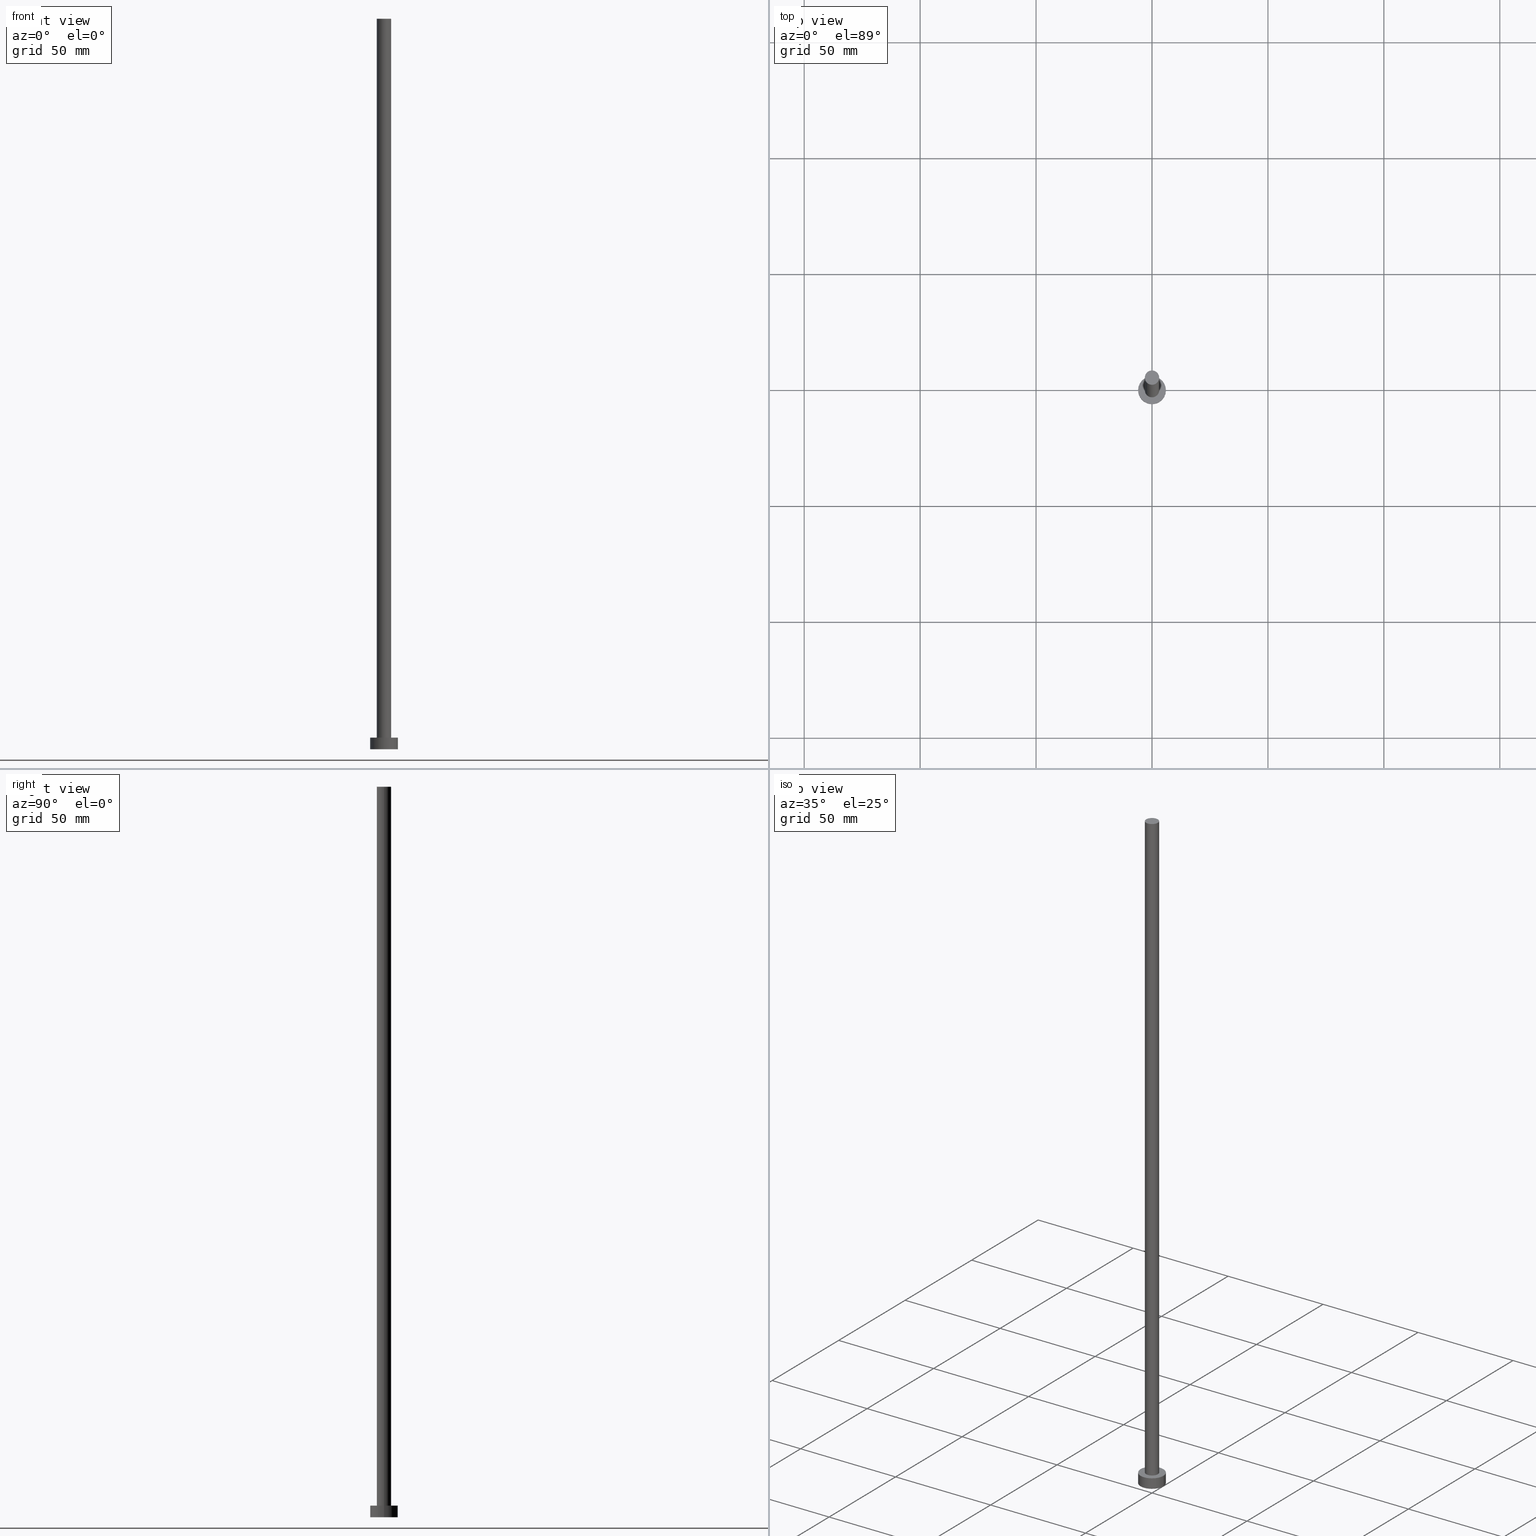
[diagram: canonical four-view strip — front | top / right | iso, engineering-drawing reading convention]
A machine part, canonical four-view strip (front | top / right | iso — engineering-drawing reading convention). The complete STEP part file that produces these views, byte-faithful:
ISO-10303-21;
HEADER;
FILE_DESCRIPTION (( 'STEP AP203' ),
    '1' );
FILE_NAME ('9f86.STEP',
    '2023-02-13T12:35:26',
    ( '' ),
    ( '' ),
    'SwSTEP 2.0',
    'SolidWorks 2019',
    '' );
FILE_SCHEMA (( 'CONFIG_CONTROL_DESIGN' ));
ENDSEC;

DATA;
#1 = CIRCLE ( 'NONE', #21, 3.100000000000000089 ) ;
#2 = CYLINDRICAL_SURFACE ( 'NONE', #121, 6.000000000000000888 ) ;
#3 = FACE_OUTER_BOUND ( 'NONE', #217, .T. ) ;
#4 = DIRECTION ( 'NONE',  ( -1.000000000000000000, 0.000000000000000000, 0.000000000000000000 ) ) ;
#5 = ORIENTED_EDGE ( 'NONE', *, *, #110, .F. ) ;
#6 = LINE ( 'NONE', #62, #50 ) ;
#7 = DIRECTION ( 'NONE',  ( -0.000000000000000000, -0.000000000000000000, -1.000000000000000000 ) ) ;
#8 = CIRCLE ( 'NONE', #58, 6.000000000000000888 ) ;
#9 = DIRECTION ( 'NONE',  ( 0.000000000000000000, 0.000000000000000000, 1.000000000000000000 ) ) ;
#10 = MECHANICAL_CONTEXT ( 'NONE', #152, 'mechanical' ) ;
#11 = AXIS2_PLACEMENT_3D ( 'NONE', #163, #243, #97 ) ;
#12 = ADVANCED_FACE ( 'NONE', ( #67, #25 ), #39, .T. ) ;
#13 = AXIS2_PLACEMENT_3D ( 'NONE', #61, #175, #159 ) ;
#14 = COORDINATED_UNIVERSAL_TIME_OFFSET ( 1, 0, .AHEAD. ) ;
#15 = ORIENTED_EDGE ( 'NONE', *, *, #215, .T. ) ;
#16 = PERSON_AND_ORGANIZATION ( #109, #99 ) ;
#17 = ORIENTED_EDGE ( 'NONE', *, *, #173, .T. ) ;
#18 = EDGE_CURVE ( 'NONE', #134, #55, #255, .T. ) ;
#19 = APPROVAL_DATE_TIME ( #252, #188 ) ;
#20 = FACE_OUTER_BOUND ( 'NONE', #234, .T. ) ;
#21 = AXIS2_PLACEMENT_3D ( 'NONE', #22, #128, #60 ) ;
#22 = CARTESIAN_POINT ( 'NONE',  ( 0.000000000000000000, 0.000000000000000000, 315.0000000000000000 ) ) ;
#23 = ORIENTED_EDGE ( 'NONE', *, *, #116, .F. ) ;
#24 = CARTESIAN_POINT ( 'NONE',  ( 0.000000000000000000, 0.000000000000000000, 5.000000000000000000 ) ) ;
#25 = FACE_OUTER_BOUND ( 'NONE', #36, .T. ) ;
#26 = LINE ( 'NONE', #107, #76 ) ;
#27 = CIRCLE ( 'NONE', #169, 3.100000000000000089 ) ;
#28 = DIRECTION ( 'NONE',  ( 0.000000000000000000, 0.000000000000000000, 1.000000000000000000 ) ) ;
#29 = PERSON_AND_ORGANIZATION ( #109, #99 ) ;
#30 = AXIS2_PLACEMENT_3D ( 'NONE', #42, #254, #126 ) ;
#31 = CALENDAR_DATE ( 2023, 13, 2 ) ;
#32 = ADVANCED_FACE ( 'NONE', ( #20 ), #200, .F. ) ;
#33 = CC_DESIGN_APPROVAL ( #167, ( #72 ) ) ;
#34 = MANIFOLD_SOLID_BREP ( 'P�idat vysunut�m3', #91 ) ;
#35 = APPROVAL_DATE_TIME ( #153, #167 ) ;
#36 = EDGE_LOOP ( 'NONE', ( #17, #69 ) ) ;
#37 = DATE_TIME_ROLE ( 'classification_date' ) ;
#38 = ORIENTED_EDGE ( 'NONE', *, *, #208, .T. ) ;
#39 = PLANE ( 'NONE',  #201 ) ;
#40 = DIRECTION ( 'NONE',  ( -0.000000000000000000, -0.000000000000000000, -1.000000000000000000 ) ) ;
#41 = UNCERTAINTY_MEASURE_WITH_UNIT (LENGTH_MEASURE( 1.000000000000000082E-05 ), #239, 'distance_accuracy_value', 'NONE');
#42 = CARTESIAN_POINT ( 'NONE',  ( 0.000000000000000000, 0.000000000000000000, 5.000000000000000000 ) ) ;
#43 = CIRCLE ( 'NONE', #144, 6.000000000000000888 ) ;
#44 = CARTESIAN_POINT ( 'NONE',  ( 0.000000000000000000, 0.000000000000000000, 315.0000000000000000 ) ) ;
#45 = DIRECTION ( 'NONE',  ( 0.000000000000000000, 0.000000000000000000, 1.000000000000000000 ) ) ;
#46 = CYLINDRICAL_SURFACE ( 'NONE', #11, 3.100000000000000089 ) ;
#47 = CARTESIAN_POINT ( 'NONE',  ( 3.100000000000000089, 3.796405077356794918E-16, 315.0000000000000000 ) ) ;
#48 = CARTESIAN_POINT ( 'NONE',  ( 0.000000000000000000, 0.000000000000000000, 5.000000000000000000 ) ) ;
#49 = LOCAL_TIME ( 13, 35, 26.00000000000000000, #192 ) ;
#50 = VECTOR ( 'NONE', #40, 1000.000000000000000 ) ;
#51 = CC_DESIGN_DATE_AND_TIME_ASSIGNMENT ( #172, #174, ( #72 ) ) ;
#52 = APPROVAL_ROLE ( '' ) ;
#53 = AXIS2_PLACEMENT_3D ( 'NONE', #48, #245, #4 ) ;
#54 = ADVANCED_FACE ( 'NONE', ( #3 ), #129, .T. ) ;
#55 = VERTEX_POINT ( 'NONE', #83 ) ;
#56 = SHAPE_DEFINITION_REPRESENTATION ( #154, #193 ) ;
#57 = PERSON_AND_ORGANIZATION ( #109, #99 ) ;
#58 = AXIS2_PLACEMENT_3D ( 'NONE', #165, #162, #104 ) ;
#59 = ORIENTED_EDGE ( 'NONE', *, *, #18, .T. ) ;
#60 = DIRECTION ( 'NONE',  ( 1.000000000000000000, 0.000000000000000000, 0.000000000000000000 ) ) ;
#61 = CARTESIAN_POINT ( 'NONE',  ( 0.000000000000000000, 0.000000000000000000, 5.000000000000000000 ) ) ;
#62 = CARTESIAN_POINT ( 'NONE',  ( 6.000000000000000888, 7.347880794884120722E-16, 5.000000000000000000 ) ) ;
#63 = CARTESIAN_POINT ( 'NONE',  ( 0.000000000000000000, 0.000000000000000000, 315.0000000000000000 ) ) ;
#64 = LOCAL_TIME ( 13, 35, 26.00000000000000000, #196 ) ;
#65 = CC_DESIGN_APPROVAL ( #146, ( #139 ) ) ;
#66 = EDGE_CURVE ( 'NONE', #138, #127, #225, .T. ) ;
#67 = FACE_BOUND ( 'NONE', #158, .T. ) ;
#68 = CARTESIAN_POINT ( 'NONE',  ( 3.100000000000000089, 3.796405077356794918E-16, 315.0000000000000000 ) ) ;
#69 = ORIENTED_EDGE ( 'NONE', *, *, #74, .T. ) ;
#70 = FACE_OUTER_BOUND ( 'NONE', #177, .T. ) ;
#71 = AXIS2_PLACEMENT_3D ( 'NONE', #63, #143, #184 ) ;
#72 = PRODUCT_DEFINITION ( 'NEZN�M�', '', #168, #101 ) ;
#73 = CALENDAR_DATE ( 2023, 13, 2 ) ;
#74 = EDGE_CURVE ( 'NONE', #244, #179, #230, .T. ) ;
#75 = ORIENTED_EDGE ( 'NONE', *, *, #215, .F. ) ;
#76 = VECTOR ( 'NONE', #176, 1000.000000000000000 ) ;
#77 = LOCAL_TIME ( 13, 35, 26.00000000000000000, #210 ) ;
#78 = APPROVAL_DATE_TIME ( #216, #146 ) ;
#79 = VERTEX_POINT ( 'NONE', #182 ) ;
#80 = PERSON_AND_ORGANIZATION ( #109, #99 ) ;
#81 = ORIENTED_EDGE ( 'NONE', *, *, #232, .T. ) ;
#82 = PERSON_AND_ORGANIZATION_ROLE ( 'classification_officer' ) ;
#83 = CARTESIAN_POINT ( 'NONE',  ( -3.100000000000000089, 0.000000000000000000, 5.000000000000000000 ) ) ;
#84 = CIRCLE ( 'NONE', #30, 3.100000000000000089 ) ;
#85 =( NAMED_UNIT ( * ) PLANE_ANGLE_UNIT ( ) SI_UNIT ( $, .RADIAN. ) );
#86 = CYLINDRICAL_SURFACE ( 'NONE', #53, 6.000000000000000888 ) ;
#87 = ADVANCED_FACE ( 'NONE', ( #70 ), #2, .T. ) ;
#88 = FACE_OUTER_BOUND ( 'NONE', #89, .T. ) ;
#89 = EDGE_LOOP ( 'NONE', ( #183, #135, #59, #15 ) ) ;
#90 = DIRECTION ( 'NONE',  ( 0.000000000000000000, 0.000000000000000000, 1.000000000000000000 ) ) ;
#91 = CLOSED_SHELL ( 'NONE', ( #54, #87, #207, #12, #32, #228, #250 ) ) ;
#92 = CARTESIAN_POINT ( 'NONE',  ( 3.100000000000000089, 3.796405077356794918E-16, 5.000000000000000000 ) ) ;
#93 =( NAMED_UNIT ( * ) SI_UNIT ( $, .STERADIAN. ) SOLID_ANGLE_UNIT ( ) );
#94 = PRODUCT_RELATED_PRODUCT_CATEGORY ( 'detail', '', ( #136 ) ) ;
#95 = PERSON_AND_ORGANIZATION ( #109, #99 ) ;
#96 = EDGE_LOOP ( 'NONE', ( #199, #194, #81, #38 ) ) ;
#97 = DIRECTION ( 'NONE',  ( -1.000000000000000000, 0.000000000000000000, 0.000000000000000000 ) ) ;
#98 = DIRECTION ( 'NONE',  ( 1.000000000000000000, 0.000000000000000000, -0.000000000000000000 ) ) ;
#99 = ORGANIZATION ( 'NEUR�EN�', 'NEUR�EN�', '' ) ;
#100 = DIRECTION ( 'NONE',  ( 1.000000000000000000, 0.000000000000000000, 0.000000000000000000 ) ) ;
#101 = DESIGN_CONTEXT ( 'detailed design', #236, 'design' ) ;
#102 = ORIENTED_EDGE ( 'NONE', *, *, #66, .T. ) ;
#103 = CC_DESIGN_PERSON_AND_ORGANIZATION_ASSIGNMENT ( #213, #82, ( #139 ) ) ;
#104 = DIRECTION ( 'NONE',  ( 1.000000000000000000, 0.000000000000000000, 0.000000000000000000 ) ) ;
#105 = ORIENTED_EDGE ( 'NONE', *, *, #247, .T. ) ;
#106 = APPROVAL_PERSON_ORGANIZATION ( #248, #167, #52 ) ;
#107 = CARTESIAN_POINT ( 'NONE',  ( -6.000000000000000888, 0.000000000000000000, 5.000000000000000000 ) ) ;
#108 = CC_DESIGN_SECURITY_CLASSIFICATION ( #139, ( #168 ) ) ;
#109 = PERSON ( 'NEUR�EN�', 'NEUR�EN�', 'NEUR�EN�', ('NEUR�EN�'), ('NEUR�EN�'), ('NEUR�EN�') ) ;
#110 = EDGE_CURVE ( 'NONE', #127, #55, #27, .T. ) ;
#111 = CARTESIAN_POINT ( 'NONE',  ( 0.000000000000000000, 0.000000000000000000, 0.000000000000000000 ) ) ;
#112 = DIRECTION ( 'NONE',  ( 1.000000000000000000, 0.000000000000000000, 0.000000000000000000 ) ) ;
#113 = PERSON_AND_ORGANIZATION_ROLE ( 'design_owner' ) ;
#114 = CIRCLE ( 'NONE', #186, 6.000000000000000888 ) ;
#115 = APPROVAL_PERSON_ORGANIZATION ( #16, #146, #157 ) ;
#116 = EDGE_CURVE ( 'NONE', #79, #124, #8, .T. ) ;
#117 = APPROVAL_STATUS ( 'not_yet_approved' ) ;
#118 = ORIENTED_EDGE ( 'NONE', *, *, #130, .T. ) ;
#119 = CALENDAR_DATE ( 2023, 13, 2 ) ;
#120 = CALENDAR_DATE ( 2023, 13, 2 ) ;
#121 = AXIS2_PLACEMENT_3D ( 'NONE', #160, #141, #218 ) ;
#122 = DIRECTION ( 'NONE',  ( -1.000000000000000000, 0.000000000000000000, 0.000000000000000000 ) ) ;
#123 = FACE_OUTER_BOUND ( 'NONE', #237, .T. ) ;
#124 = VERTEX_POINT ( 'NONE', #226 ) ;
#125 = CC_DESIGN_APPROVAL ( #188, ( #168 ) ) ;
#126 = DIRECTION ( 'NONE',  ( 1.000000000000000000, 0.000000000000000000, 0.000000000000000000 ) ) ;
#127 = VERTEX_POINT ( 'NONE', #92 ) ;
#128 = DIRECTION ( 'NONE',  ( 0.000000000000000000, 0.000000000000000000, 1.000000000000000000 ) ) ;
#129 = CYLINDRICAL_SURFACE ( 'NONE', #187, 3.100000000000000089 ) ;
#130 = EDGE_CURVE ( 'NONE', #244, #79, #6, .T. ) ;
#131 = DIRECTION ( 'NONE',  ( 0.000000000000000000, 0.000000000000000000, 1.000000000000000000 ) ) ;
#132 = LOCAL_TIME ( 13, 35, 26.00000000000000000, #14 ) ;
#133 = VECTOR ( 'NONE', #161, 1000.000000000000000 ) ;
#134 = VERTEX_POINT ( 'NONE', #142 ) ;
#135 = ORIENTED_EDGE ( 'NONE', *, *, #140, .F. ) ;
#136 = PRODUCT ( '9f86', '9f86', '', ( #10 ) ) ;
#137 = APPROVAL_STATUS ( 'not_yet_approved' ) ;
#138 = VERTEX_POINT ( 'NONE', #68 ) ;
#139 = SECURITY_CLASSIFICATION ( '', '', #214 ) ;
#140 = EDGE_CURVE ( 'NONE', #134, #138, #1, .T. ) ;
#141 = DIRECTION ( 'NONE',  ( -0.000000000000000000, -0.000000000000000000, -1.000000000000000000 ) ) ;
#142 = CARTESIAN_POINT ( 'NONE',  ( -3.100000000000000089, 0.000000000000000000, 315.0000000000000000 ) ) ;
#143 = DIRECTION ( 'NONE',  ( 0.000000000000000000, 0.000000000000000000, 1.000000000000000000 ) ) ;
#144 = AXIS2_PLACEMENT_3D ( 'NONE', #24, #131, #219 ) ;
#145 = CARTESIAN_POINT ( 'NONE',  ( -3.100000000000000089, 0.000000000000000000, 315.0000000000000000 ) ) ;
#146 = APPROVAL ( #137, 'NEUR�EN�' ) ;
#147 = DIRECTION ( 'NONE',  ( 0.000000000000000000, 0.000000000000000000, 1.000000000000000000 ) ) ;
#148 = CC_DESIGN_PERSON_AND_ORGANIZATION_ASSIGNMENT ( #29, #113, ( #136 ) ) ;
#149 = APPROVAL_STATUS ( 'not_yet_approved' ) ;
#150 = AXIS2_PLACEMENT_3D ( 'NONE', #111, #28, #112 ) ;
#151 = CC_DESIGN_DATE_AND_TIME_ASSIGNMENT ( #249, #37, ( #139 ) ) ;
#152 = APPLICATION_CONTEXT ( 'configuration controlled 3d designs of mechanical parts and assemblies' ) ;
#153 = DATE_AND_TIME ( #31, #77 ) ;
#154 = PRODUCT_DEFINITION_SHAPE ( 'NONE', 'NONE',  #72 ) ;
#155 = ORIENTED_EDGE ( 'NONE', *, *, #110, .T. ) ;
#156 = ORIENTED_EDGE ( 'NONE', *, *, #247, .F. ) ;
#157 = APPROVAL_ROLE ( '' ) ;
#158 = EDGE_LOOP ( 'NONE', ( #75, #5 ) ) ;
#159 = DIRECTION ( 'NONE',  ( 1.000000000000000000, 0.000000000000000000, 0.000000000000000000 ) ) ;
#160 = CARTESIAN_POINT ( 'NONE',  ( 0.000000000000000000, 0.000000000000000000, 5.000000000000000000 ) ) ;
#161 = DIRECTION ( 'NONE',  ( -0.000000000000000000, -0.000000000000000000, -1.000000000000000000 ) ) ;
#162 = DIRECTION ( 'NONE',  ( 0.000000000000000000, 0.000000000000000000, 1.000000000000000000 ) ) ;
#163 = CARTESIAN_POINT ( 'NONE',  ( 0.000000000000000000, 0.000000000000000000, 315.0000000000000000 ) ) ;
#164 = ORIENTED_EDGE ( 'NONE', *, *, #116, .T. ) ;
#165 = CARTESIAN_POINT ( 'NONE',  ( 0.000000000000000000, 0.000000000000000000, 0.000000000000000000 ) ) ;
#166 = DIRECTION ( 'NONE',  ( 1.000000000000000000, 0.000000000000000000, -0.000000000000000000 ) ) ;
#167 = APPROVAL ( #149, 'NEUR�EN�' ) ;
#168 = PRODUCT_DEFINITION_FORMATION_WITH_SPECIFIED_SOURCE ( 'LIBOVOLN�', '', #136, .NOT_KNOWN. ) ;
#169 = AXIS2_PLACEMENT_3D ( 'NONE', #178, #180, #100 ) ;
#170 = CALENDAR_DATE ( 2023, 13, 2 ) ;
#171 = ORIENTED_EDGE ( 'NONE', *, *, #140, .T. ) ;
#172 = DATE_AND_TIME ( #170, #49 ) ;
#173 = EDGE_CURVE ( 'NONE', #179, #244, #43, .T. ) ;
#174 = DATE_TIME_ROLE ( 'creation_date' ) ;
#175 = DIRECTION ( 'NONE',  ( 0.000000000000000000, 0.000000000000000000, 1.000000000000000000 ) ) ;
#176 = DIRECTION ( 'NONE',  ( -0.000000000000000000, -0.000000000000000000, -1.000000000000000000 ) ) ;
#177 = EDGE_LOOP ( 'NONE', ( #203, #118, #164, #181 ) ) ;
#178 = CARTESIAN_POINT ( 'NONE',  ( 0.000000000000000000, 0.000000000000000000, 5.000000000000000000 ) ) ;
#179 = VERTEX_POINT ( 'NONE', #206 ) ;
#180 = DIRECTION ( 'NONE',  ( 0.000000000000000000, 0.000000000000000000, 1.000000000000000000 ) ) ;
#181 = ORIENTED_EDGE ( 'NONE', *, *, #232, .F. ) ;
#182 = CARTESIAN_POINT ( 'NONE',  ( 6.000000000000000888, 7.347880794884120722E-16, 0.000000000000000000 ) ) ;
#183 = ORIENTED_EDGE ( 'NONE', *, *, #66, .F. ) ;
#184 = DIRECTION ( 'NONE',  ( 1.000000000000000000, 0.000000000000000000, 0.000000000000000000 ) ) ;
#185 = APPLICATION_PROTOCOL_DEFINITION ( 'international standard', 'config_control_design', 1994, #152 ) ;
#186 = AXIS2_PLACEMENT_3D ( 'NONE', #205, #90, #224 ) ;
#187 = AXIS2_PLACEMENT_3D ( 'NONE', #204, #7, #122 ) ;
#188 = APPROVAL ( #117, 'NEUR�EN�' ) ;
#189 = LOCAL_TIME ( 13, 35, 26.00000000000000000, #233 ) ;
#190 = PERSON_AND_ORGANIZATION_ROLE ( 'creator' ) ;
#191 = ORIENTED_EDGE ( 'NONE', *, *, #18, .F. ) ;
#192 = COORDINATED_UNIVERSAL_TIME_OFFSET ( 1, 0, .AHEAD. ) ;
#193 = ADVANCED_BREP_SHAPE_REPRESENTATION ( '9f86', ( #34, #150 ), #209 ) ;
#194 = ORIENTED_EDGE ( 'NONE', *, *, #173, .F. ) ;
#195 = PERSON_AND_ORGANIZATION_ROLE ( 'creator' ) ;
#196 = COORDINATED_UNIVERSAL_TIME_OFFSET ( 1, 0, .AHEAD. ) ;
#197 = CC_DESIGN_PERSON_AND_ORGANIZATION_ASSIGNMENT ( #80, #190, ( #168 ) ) ;
#198 = DIRECTION ( 'NONE',  ( -0.000000000000000000, -0.000000000000000000, -1.000000000000000000 ) ) ;
#199 = ORIENTED_EDGE ( 'NONE', *, *, #130, .F. ) ;
#200 = PLANE ( 'NONE',  #227 ) ;
#201 = AXIS2_PLACEMENT_3D ( 'NONE', #246, #147, #98 ) ;
#202 = CARTESIAN_POINT ( 'NONE',  ( 6.000000000000000888, 7.347880794884120722E-16, 5.000000000000000000 ) ) ;
#203 = ORIENTED_EDGE ( 'NONE', *, *, #74, .F. ) ;
#204 = CARTESIAN_POINT ( 'NONE',  ( 0.000000000000000000, 0.000000000000000000, 315.0000000000000000 ) ) ;
#205 = CARTESIAN_POINT ( 'NONE',  ( 0.000000000000000000, 0.000000000000000000, 0.000000000000000000 ) ) ;
#206 = CARTESIAN_POINT ( 'NONE',  ( -6.000000000000000888, 0.000000000000000000, 5.000000000000000000 ) ) ;
#207 = ADVANCED_FACE ( 'NONE', ( #242 ), #86, .T. ) ;
#208 = EDGE_CURVE ( 'NONE', #124, #79, #114, .T. ) ;
#209 =( GEOMETRIC_REPRESENTATION_CONTEXT ( 3 ) GLOBAL_UNCERTAINTY_ASSIGNED_CONTEXT ( ( #41 ) ) GLOBAL_UNIT_ASSIGNED_CONTEXT ( ( #239, #85, #93 ) ) REPRESENTATION_CONTEXT ( 'NONE', 'WORKASPACE' ) );
#210 = COORDINATED_UNIVERSAL_TIME_OFFSET ( 1, 0, .AHEAD. ) ;
#211 = VECTOR ( 'NONE', #198, 1000.000000000000000 ) ;
#212 = PERSON_AND_ORGANIZATION_ROLE ( 'design_supplier' ) ;
#213 = PERSON_AND_ORGANIZATION ( #109, #99 ) ;
#214 = SECURITY_CLASSIFICATION_LEVEL ( 'unclassified' ) ;
#215 = EDGE_CURVE ( 'NONE', #55, #127, #84, .T. ) ;
#216 = DATE_AND_TIME ( #119, #64 ) ;
#217 = EDGE_LOOP ( 'NONE', ( #156, #102, #155, #191 ) ) ;
#218 = DIRECTION ( 'NONE',  ( -1.000000000000000000, 0.000000000000000000, 0.000000000000000000 ) ) ;
#219 = DIRECTION ( 'NONE',  ( 1.000000000000000000, 0.000000000000000000, 0.000000000000000000 ) ) ;
#220 = CIRCLE ( 'NONE', #71, 3.100000000000000089 ) ;
#221 = APPROVAL_PERSON_ORGANIZATION ( #251, #188, #238 ) ;
#222 = PLANE ( 'NONE',  #229 ) ;
#223 = CARTESIAN_POINT ( 'NONE',  ( 0.000000000000000000, 0.000000000000000000, 0.000000000000000000 ) ) ;
#224 = DIRECTION ( 'NONE',  ( 1.000000000000000000, 0.000000000000000000, 0.000000000000000000 ) ) ;
#225 = LINE ( 'NONE', #47, #211 ) ;
#226 = CARTESIAN_POINT ( 'NONE',  ( -6.000000000000000888, 0.000000000000000000, 0.000000000000000000 ) ) ;
#227 = AXIS2_PLACEMENT_3D ( 'NONE', #223, #45, #240 ) ;
#228 = ADVANCED_FACE ( 'NONE', ( #88 ), #46, .T. ) ;
#229 = AXIS2_PLACEMENT_3D ( 'NONE', #44, #9, #166 ) ;
#230 = CIRCLE ( 'NONE', #13, 6.000000000000000888 ) ;
#231 = APPLICATION_PROTOCOL_DEFINITION ( 'international standard', 'config_control_design', 1994, #236 ) ;
#232 = EDGE_CURVE ( 'NONE', #179, #124, #26, .T. ) ;
#233 = COORDINATED_UNIVERSAL_TIME_OFFSET ( 1, 0, .AHEAD. ) ;
#234 = EDGE_LOOP ( 'NONE', ( #253, #23 ) ) ;
#235 = CC_DESIGN_PERSON_AND_ORGANIZATION_ASSIGNMENT ( #95, #195, ( #72 ) ) ;
#236 = APPLICATION_CONTEXT ( 'configuration controlled 3d designs of mechanical parts and assemblies' ) ;
#237 = EDGE_LOOP ( 'NONE', ( #171, #105 ) ) ;
#238 = APPROVAL_ROLE ( '' ) ;
#239 =( LENGTH_UNIT ( ) NAMED_UNIT ( * ) SI_UNIT ( .MILLI., .METRE. ) );
#240 = DIRECTION ( 'NONE',  ( 1.000000000000000000, 0.000000000000000000, -0.000000000000000000 ) ) ;
#241 = CC_DESIGN_PERSON_AND_ORGANIZATION_ASSIGNMENT ( #57, #212, ( #168 ) ) ;
#242 = FACE_OUTER_BOUND ( 'NONE', #96, .T. ) ;
#243 = DIRECTION ( 'NONE',  ( -0.000000000000000000, -0.000000000000000000, -1.000000000000000000 ) ) ;
#244 = VERTEX_POINT ( 'NONE', #202 ) ;
#245 = DIRECTION ( 'NONE',  ( -0.000000000000000000, -0.000000000000000000, -1.000000000000000000 ) ) ;
#246 = CARTESIAN_POINT ( 'NONE',  ( 0.000000000000000000, 0.000000000000000000, 5.000000000000000000 ) ) ;
#247 = EDGE_CURVE ( 'NONE', #138, #134, #220, .T. ) ;
#248 = PERSON_AND_ORGANIZATION ( #109, #99 ) ;
#249 = DATE_AND_TIME ( #120, #132 ) ;
#250 = ADVANCED_FACE ( 'NONE', ( #123 ), #222, .T. ) ;
#251 = PERSON_AND_ORGANIZATION ( #109, #99 ) ;
#252 = DATE_AND_TIME ( #73, #189 ) ;
#253 = ORIENTED_EDGE ( 'NONE', *, *, #208, .F. ) ;
#254 = DIRECTION ( 'NONE',  ( 0.000000000000000000, 0.000000000000000000, 1.000000000000000000 ) ) ;
#255 = LINE ( 'NONE', #145, #133 ) ;
ENDSEC;
END-ISO-10303-21;
